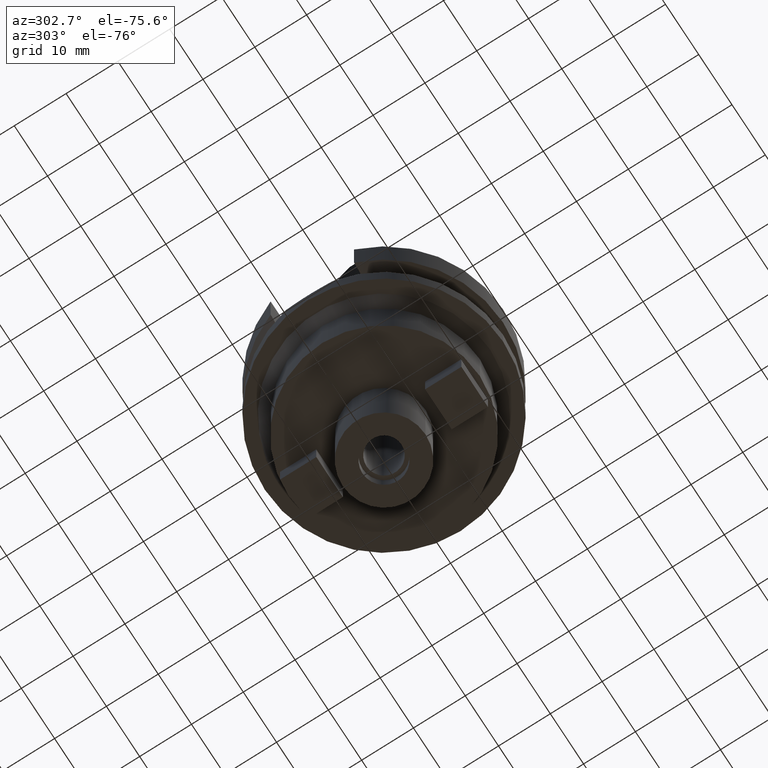
[diagram: clean part render]
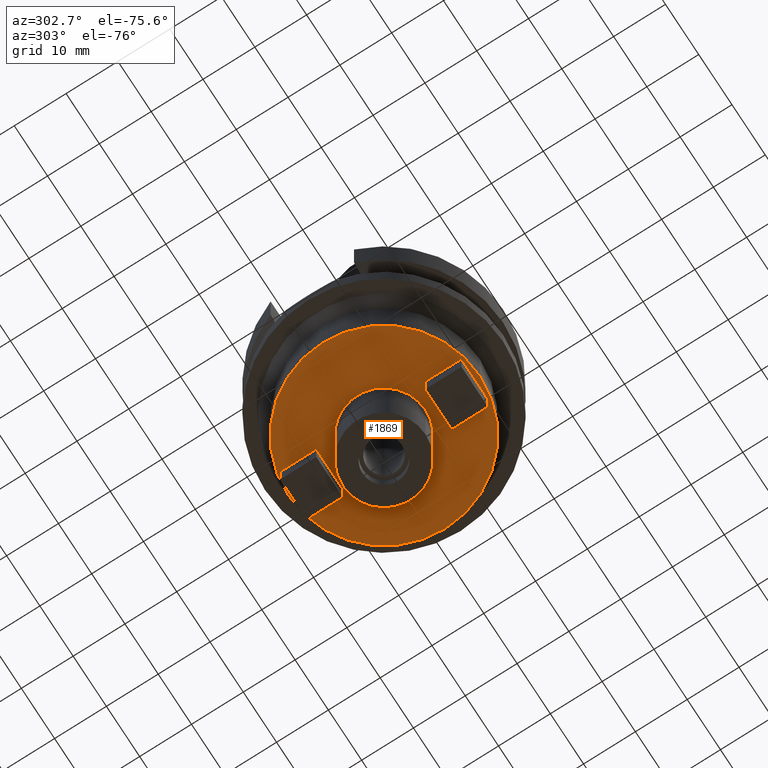
[diagram: same view with one face highlighted and labeled with its STEP entity id]
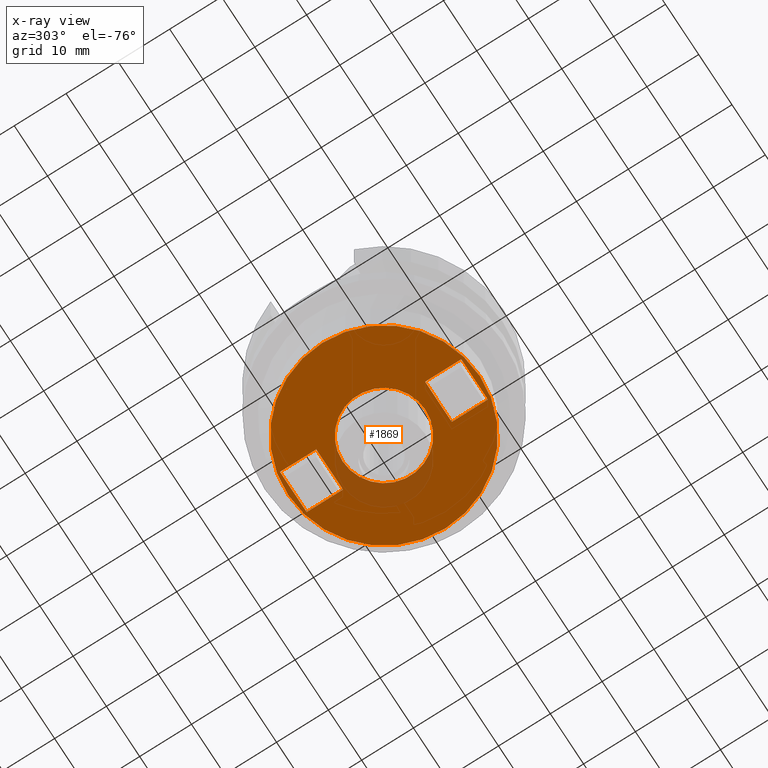
[diagram: x-ray of the same camera — body ghosted, the highlighted face saturated]
A machine part, auxiliary view. The second image highlights one B-rep face of the part: STEP entity #1869.
The next image is the same camera in x-ray: the body ghosted, the highlighted face saturated — about 9% of this face is hidden behind the body in this view.
In plain terms, the highlighted planar face has unit normal (0, 0, -1).
Its self-contained STEP definition (entity closure, byte-faithful):
#695=CARTESIAN_POINT('',(0.E0,1.878240795852E-14,-3.5E1));
#696=DIRECTION('',(0.E0,0.E0,1.E0));
#697=DIRECTION('',(0.E0,-1.E0,0.E0));
#698=AXIS2_PLACEMENT_3D('',#695,#696,#697);
#703=CARTESIAN_POINT('',(0.E0,1.878240795852E-14,-3.5E1));
#704=DIRECTION('',(0.E0,0.E0,1.E0));
#705=DIRECTION('',(0.E0,1.E0,0.E0));
#706=AXIS2_PLACEMENT_3D('',#703,#704,#705);
#711=CARTESIAN_POINT('',(0.E0,1.878240795852E-14,-3.5E1));
#712=DIRECTION('',(0.E0,0.E0,-1.E0));
#713=DIRECTION('',(0.E0,-1.E0,0.E0));
#714=AXIS2_PLACEMENT_3D('',#711,#712,#713);
#719=CARTESIAN_POINT('',(0.E0,1.878240795852E-14,-3.5E1));
#720=DIRECTION('',(0.E0,0.E0,-1.E0));
#721=DIRECTION('',(0.E0,1.E0,0.E0));
#722=AXIS2_PLACEMENT_3D('',#719,#720,#721);
#727=DIRECTION('',(-1.E0,0.E0,0.E0));
#728=VECTOR('',#727,8.E0);
#729=CARTESIAN_POINT('',(4.E0,1.05E1,-3.5E1));
#730=LINE('',#729,#728);
#734=DIRECTION('',(0.E0,1.E0,0.E0));
#735=VECTOR('',#734,7.E0);
#736=CARTESIAN_POINT('',(-4.E0,1.05E1,-3.5E1));
#737=LINE('',#736,#735);
#741=DIRECTION('',(1.E0,0.E0,0.E0));
#742=VECTOR('',#741,8.E0);
#743=CARTESIAN_POINT('',(-4.E0,-1.05E1,-3.5E1));
#744=LINE('',#743,#742);
#748=DIRECTION('',(0.E0,-1.E0,0.E0));
#749=VECTOR('',#748,7.E0);
#750=CARTESIAN_POINT('',(4.E0,-1.05E1,-3.5E1));
#751=LINE('',#750,#749);
#1013=DIRECTION('',(0.E0,1.E0,0.E0));
#1014=VECTOR('',#1013,7.E0);
#1015=CARTESIAN_POINT('',(4.E0,1.05E1,-3.5E1));
#1016=LINE('',#1015,#1014);
#1041=DIRECTION('',(-1.E0,0.E0,0.E0));
#1042=VECTOR('',#1041,8.E0);
#1043=CARTESIAN_POINT('',(4.E0,1.75E1,-3.5E1));
#1044=LINE('',#1043,#1042);
#1083=DIRECTION('',(0.E0,-1.E0,0.E0));
#1084=VECTOR('',#1083,7.E0);
#1085=CARTESIAN_POINT('',(-4.E0,-1.05E1,-3.5E1));
#1086=LINE('',#1085,#1084);
#1111=DIRECTION('',(1.E0,0.E0,0.E0));
#1112=VECTOR('',#1111,8.E0);
#1113=CARTESIAN_POINT('',(-4.E0,-1.75E1,-3.5E1));
#1114=LINE('',#1113,#1112);
#1221=CARTESIAN_POINT('',(0.E0,8.E0,-3.5E1));
#1222=VERTEX_POINT('',#1221);
#1223=CARTESIAN_POINT('',(0.E0,-8.E0,-3.5E1));
#1224=VERTEX_POINT('',#1223);
#1225=CARTESIAN_POINT('',(0.E0,-1.85E1,-3.5E1));
#1226=CARTESIAN_POINT('',(0.E0,1.85E1,-3.5E1));
#1227=VERTEX_POINT('',#1225);
#1228=VERTEX_POINT('',#1226);
#1229=CARTESIAN_POINT('',(4.E0,1.05E1,-3.5E1));
#1230=CARTESIAN_POINT('',(4.E0,1.75E1,-3.5E1));
#1231=VERTEX_POINT('',#1229);
#1232=VERTEX_POINT('',#1230);
#1233=CARTESIAN_POINT('',(-4.E0,1.05E1,-3.5E1));
#1234=VERTEX_POINT('',#1233);
#1235=CARTESIAN_POINT('',(-4.E0,1.75E1,-3.5E1));
#1236=VERTEX_POINT('',#1235);
#1237=CARTESIAN_POINT('',(-4.E0,-1.05E1,-3.5E1));
#1238=CARTESIAN_POINT('',(-4.E0,-1.75E1,-3.5E1));
#1239=VERTEX_POINT('',#1237);
#1240=VERTEX_POINT('',#1238);
#1241=CARTESIAN_POINT('',(4.E0,-1.05E1,-3.5E1));
#1242=VERTEX_POINT('',#1241);
#1243=CARTESIAN_POINT('',(4.E0,-1.75E1,-3.5E1));
#1244=VERTEX_POINT('',#1243);
#1834=CARTESIAN_POINT('',(0.E0,0.E0,-3.5E1));
#1835=DIRECTION('',(0.E0,0.E0,-1.E0));
#1836=DIRECTION('',(0.E0,-1.E0,0.E0));
#1837=AXIS2_PLACEMENT_3D('',#1834,#1835,#1836);
#1838=PLANE('',#1837);
#1839=ORIENTED_EDGE('',*,*,#1813,.T.);
#1840=ORIENTED_EDGE('',*,*,#1829,.T.);
#1841=EDGE_LOOP('',(#1839,#1840));
#1842=FACE_OUTER_BOUND('',#1841,.F.);
#1844=ORIENTED_EDGE('',*,*,#1843,.T.);
#1846=ORIENTED_EDGE('',*,*,#1845,.T.);
#1847=EDGE_LOOP('',(#1844,#1846));
#1848=FACE_BOUND('',#1847,.F.);
#1850=ORIENTED_EDGE('',*,*,#1849,.F.);
#1852=ORIENTED_EDGE('',*,*,#1851,.T.);
#1854=ORIENTED_EDGE('',*,*,#1853,.T.);
#1856=ORIENTED_EDGE('',*,*,#1855,.F.);
#1857=EDGE_LOOP('',(#1850,#1852,#1854,#1856));
#1858=FACE_BOUND('',#1857,.F.);
#1860=ORIENTED_EDGE('',*,*,#1859,.F.);
#1862=ORIENTED_EDGE('',*,*,#1861,.T.);
#1864=ORIENTED_EDGE('',*,*,#1863,.T.);
#1866=ORIENTED_EDGE('',*,*,#1865,.F.);
#1867=EDGE_LOOP('',(#1860,#1862,#1864,#1866));
#1868=FACE_BOUND('',#1867,.F.);
#699=CIRCLE('',#698,1.85E1);
#707=CIRCLE('',#706,1.85E1);
#715=CIRCLE('',#714,8.E0);
#723=CIRCLE('',#722,8.E0);
#1813=EDGE_CURVE('',#1227,#1228,#699,.T.);
#1829=EDGE_CURVE('',#1228,#1227,#707,.T.);
#1843=EDGE_CURVE('',#1224,#1222,#715,.T.);
#1845=EDGE_CURVE('',#1222,#1224,#723,.T.);
#1849=EDGE_CURVE('',#1231,#1232,#1016,.T.);
#1851=EDGE_CURVE('',#1231,#1234,#730,.T.);
#1853=EDGE_CURVE('',#1234,#1236,#737,.T.);
#1855=EDGE_CURVE('',#1232,#1236,#1044,.T.);
#1859=EDGE_CURVE('',#1239,#1240,#1086,.T.);
#1861=EDGE_CURVE('',#1239,#1242,#744,.T.);
#1863=EDGE_CURVE('',#1242,#1244,#751,.T.);
#1865=EDGE_CURVE('',#1240,#1244,#1114,.T.);
#1869=ADVANCED_FACE('',(#1842,#1848,#1858,#1868),#1838,.T.);